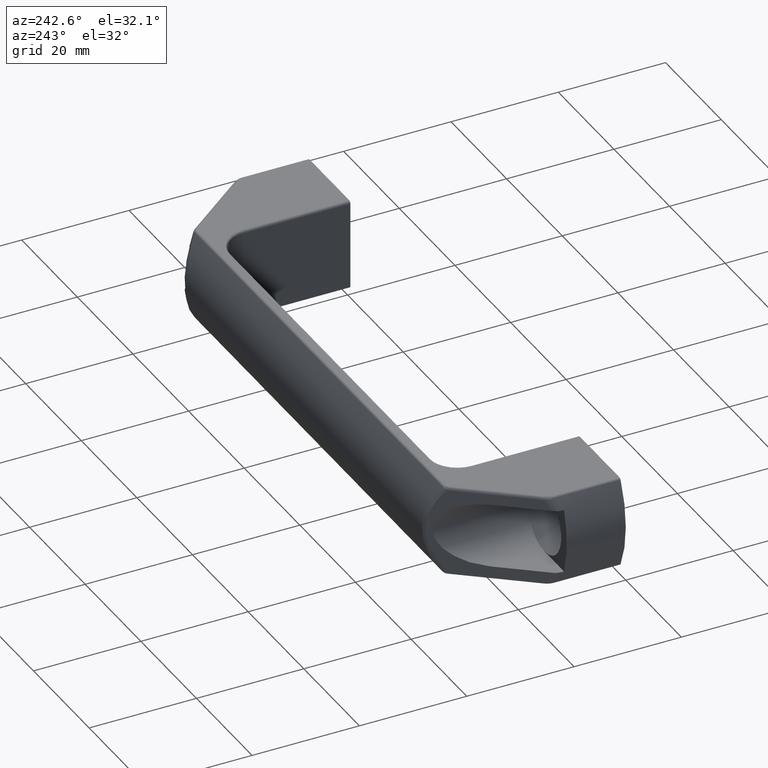
[diagram: clean part render]
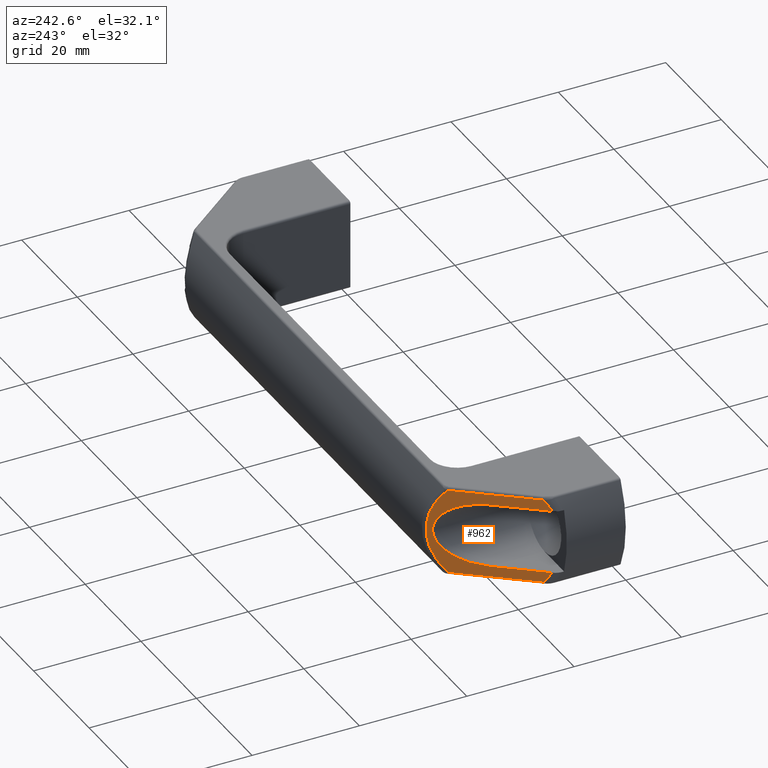
[diagram: same view with one face highlighted and labeled with its STEP entity id]
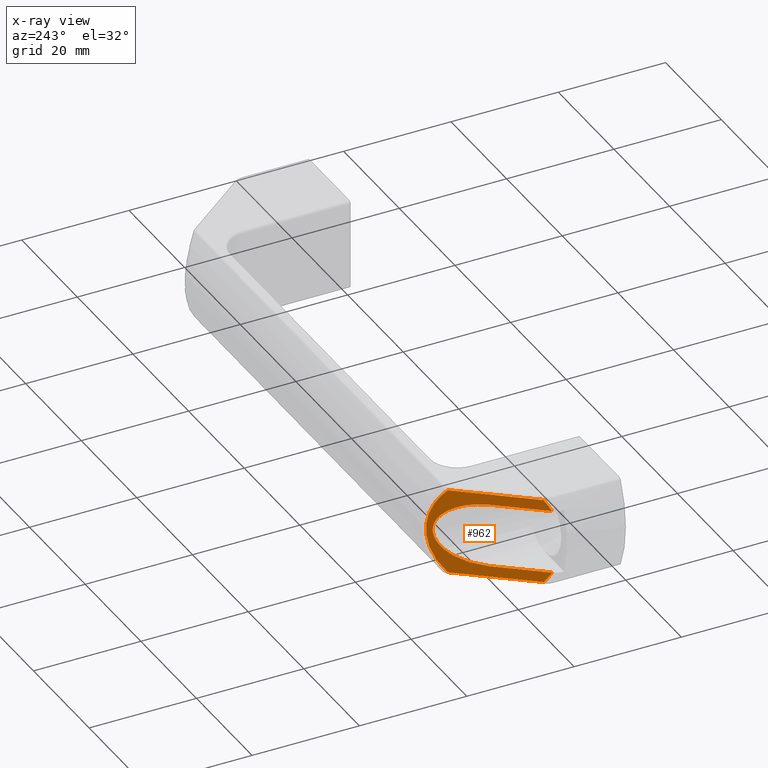
[diagram: x-ray of the same camera — body ghosted, the highlighted face saturated]
A machine part, auxiliary view. The second image highlights one B-rep face of the part: STEP entity #962.
The next image is the same camera in x-ray: the body ghosted, the highlighted face saturated — about 0% of this face is hidden behind the body in this view.
In plain terms, the highlighted planar face has unit normal (-0.7849, 0.6196, 0).
Its self-contained STEP definition (entity closure, byte-faithful):
#17=ELLIPSE('',#1064,27.5359594439707,17.0625);
#18=ELLIPSE('',#1066,15.9790317960964,12.5416666666667);
#19=ELLIPSE('',#1067,27.5359594439707,17.0625);
#20=ELLIPSE('',#1068,9.68297474952817,6.);
#98=LINE('',#1641,#156);
#104=LINE('',#1713,#162);
#105=LINE('',#1717,#163);
#106=LINE('',#1720,#164);
#156=VECTOR('',#1272,16.1413156891721);
#162=VECTOR('',#1294,16.1413156891721);
#163=VECTOR('',#1297,10.4576460631748);
#164=VECTOR('',#1300,10.4576460631748);
#189=PLANE('',#1065);
#262=FACE_OUTER_BOUND('',#328,.T.);
#328=EDGE_LOOP('',(#779,#780,#781,#782,#783,#784,#785,#786));
#459=VERTEX_POINT('',#1623);
#461=VERTEX_POINT('',#1637);
#468=VERTEX_POINT('',#1701);
#469=VERTEX_POINT('',#1710);
#470=VERTEX_POINT('',#1712);
#471=VERTEX_POINT('',#1714);
#472=VERTEX_POINT('',#1716);
#473=VERTEX_POINT('',#1718);
#574=EDGE_CURVE('',#459,#461,#98,.T.);
#585=EDGE_CURVE('',#461,#468,#17,.T.);
#587=EDGE_CURVE('',#469,#459,#18,.T.);
#588=EDGE_CURVE('',#470,#469,#104,.T.);
#589=EDGE_CURVE('',#471,#470,#19,.T.);
#590=EDGE_CURVE('',#471,#472,#105,.T.);
#591=EDGE_CURVE('',#472,#473,#20,.T.);
#592=EDGE_CURVE('',#473,#468,#106,.T.);
#779=ORIENTED_EDGE('',*,*,#574,.F.);
#780=ORIENTED_EDGE('',*,*,#587,.F.);
#781=ORIENTED_EDGE('',*,*,#588,.F.);
#782=ORIENTED_EDGE('',*,*,#589,.F.);
#783=ORIENTED_EDGE('',*,*,#590,.T.);
#784=ORIENTED_EDGE('',*,*,#591,.T.);
#785=ORIENTED_EDGE('',*,*,#592,.T.);
#786=ORIENTED_EDGE('',*,*,#585,.F.);
#962=ADVANCED_FACE('',(#262),#189,.T.);
#1064=AXIS2_PLACEMENT_3D('',#1702,#1288,#1289);
#1065=AXIS2_PLACEMENT_3D('',#1709,#1290,#1291);
#1066=AXIS2_PLACEMENT_3D('',#1711,#1292,#1293);
#1067=AXIS2_PLACEMENT_3D('',#1715,#1295,#1296);
#1068=AXIS2_PLACEMENT_3D('',#1719,#1298,#1299);
#1272=DIRECTION('',(-0.61964428857902,-0.784882765533426,0.));
#1288=DIRECTION('center_axis',(0.784882765533426,-0.61964428857902,0.));
#1289=DIRECTION('ref_axis',(-0.61964428857902,-0.784882765533427,4.03190245425877E-17));
#1290=DIRECTION('center_axis',(-0.784882765533426,0.61964428857902,0.));
#1291=DIRECTION('ref_axis',(-0.61964428857902,-0.784882765533426,0.));
#1292=DIRECTION('center_axis',(0.784882765533426,-0.61964428857902,0.));
#1293=DIRECTION('ref_axis',(0.61964428857902,0.784882765533426,-2.08439980367843E-16));
#1294=DIRECTION('',(0.61964428857902,0.784882765533426,0.));
#1295=DIRECTION('center_axis',(0.784882765533426,-0.61964428857902,0.));
#1296=DIRECTION('ref_axis',(-0.61964428857902,-0.784882765533427,4.03190245425877E-17));
#1297=DIRECTION('',(0.61964428857902,0.784882765533426,0.));
#1298=DIRECTION('center_axis',(0.784882765533426,-0.61964428857902,0.));
#1299=DIRECTION('ref_axis',(0.61964428857902,0.784882765533427,1.14657226042984E-16));
#1300=DIRECTION('',(-0.61964428857902,-0.784882765533426,-1.71985839064476E-16));
#1623=CARTESIAN_POINT('',(12.4238120755533,26.7368286290342,8.));
#1637=CARTESIAN_POINT('',(2.42193799860684,14.0677881315687,8.));
#1641=CARTESIAN_POINT('',(20.7325994591984,37.261292648318,8.));
#1701=CARTESIAN_POINT('',(1.51997934497285,12.9253071702989,6.));
#1702=CARTESIAN_POINT('Origin',(17.4927344689332,33.1574636606487,0.));
#1709=CARTESIAN_POINT('Origin',(15.,30.,0.));
#1710=CARTESIAN_POINT('',(12.4238120755533,26.7368286290342,-8.));
#1711=CARTESIAN_POINT('Origin',(4.79840338572029,17.0779776219124,0.));
#1712=CARTESIAN_POINT('',(2.42193799860684,14.0677881315687,-8.));
#1713=CARTESIAN_POINT('',(20.7325994591984,37.261292648318,-8.));
#1714=CARTESIAN_POINT('',(1.51997934497284,12.9253071702989,-6.));
#1715=CARTESIAN_POINT('Origin',(17.4927344689332,33.1574636606487,0.));
#1716=CARTESIAN_POINT('',(8.,21.1333333333333,-6.));
#1717=CARTESIAN_POINT('',(12.3634812286689,26.660409556314,-6.));
#1718=CARTESIAN_POINT('',(8.,21.1333333333333,6.));
#1719=CARTESIAN_POINT('Origin',(8.,21.1333333333333,-1.11022302462516E-15));
#1720=CARTESIAN_POINT('',(13.8993174061433,28.6058020477816,6.00000000000001));